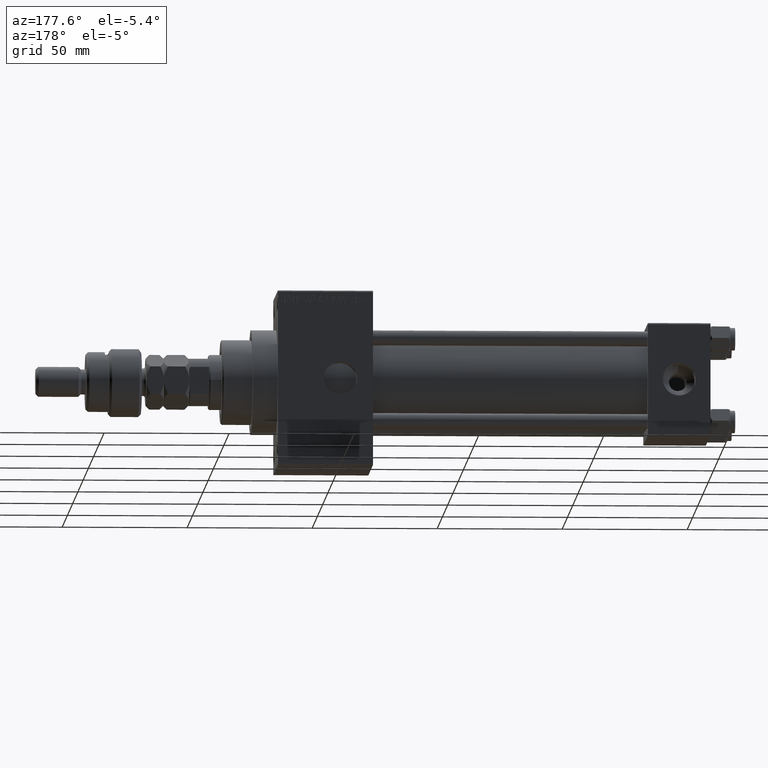
[diagram: clean part render]
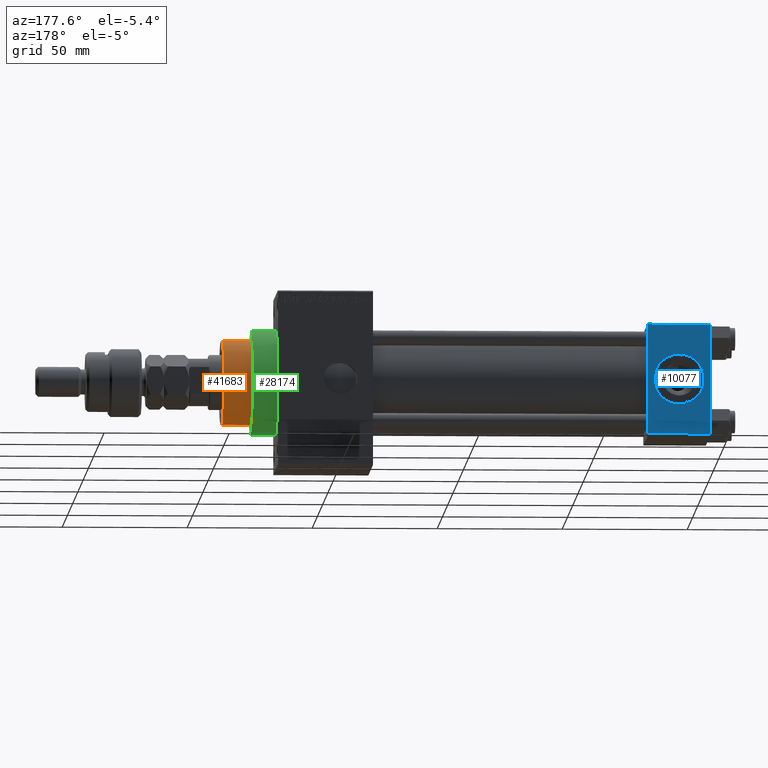
[diagram: same view with three faces highlighted in distinct colors, each labeled with its STEP entity id]
A machine part, auxiliary view with three faces highlighted in distinct colors.
Their STEP definitions:

[orange] entity #41683 — the highlighted cylindrical surface (partial cylindrical patch) has radius 17 mm, axis along (-1, 0, 0).
#1791 = DIRECTION ( 'NONE',  ( 0.000000000000000000, 0.000000000000000000, 1.000000000000000000 ) ) ;
#3384 = CARTESIAN_POINT ( 'NONE',  ( 0.000000000000000000, 0.000000000000000000, 55.26000000000000512 ) ) ;
#3601 = VERTEX_POINT ( 'NONE', #36554 ) ;
#3917 = VECTOR ( 'NONE', #25214, 1000.000000000000000 ) ;
#4761 = CARTESIAN_POINT ( 'NONE',  ( -17.00000000000000000, 0.000000000000000000, 55.26000000000000512 ) ) ;
#7312 = FACE_OUTER_BOUND ( 'NONE', #25603, .T. ) ;
#8261 = DIRECTION ( 'NONE',  ( 1.000000000000000000, 0.000000000000000000, 0.000000000000000000 ) ) ;
#9927 = CARTESIAN_POINT ( 'NONE',  ( 0.000000000000000000, 0.000000000000000000, 43.25999999999999801 ) ) ;
#10093 = ORIENTED_EDGE ( 'NONE', *, *, #15094, .T. ) ;
#11710 = CARTESIAN_POINT ( 'NONE',  ( 17.00000000000000000, 2.081899558550500280E-15, 55.26000000000000512 ) ) ;
#13594 = CARTESIAN_POINT ( 'NONE',  ( 17.00000000000000000, 2.081899558550500280E-15, 54.76000000000001222 ) ) ;
#15094 = EDGE_CURVE ( 'NONE', #35003, #31346, #28921, .T. ) ;
#16918 = ORIENTED_EDGE ( 'NONE', *, *, #44197, .T. ) ;
#21741 = DIRECTION ( 'NONE',  ( 1.000000000000000000, 0.000000000000000000, 0.000000000000000000 ) ) ;
#24557 = AXIS2_PLACEMENT_3D ( 'NONE', #47411, #27981, #8261 ) ;
#25214 = DIRECTION ( 'NONE',  ( -0.000000000000000000, -0.000000000000000000, -1.000000000000000000 ) ) ;
#25603 = EDGE_LOOP ( 'NONE', ( #40125, #16918, #10093, #39346 ) ) ;
#27085 = CIRCLE ( 'NONE', #27919, 17.00000000000000000 ) ;
#27919 = AXIS2_PLACEMENT_3D ( 'NONE', #9927, #1791, #21741 ) ;
#27981 = DIRECTION ( 'NONE',  ( 0.000000000000000000, 0.000000000000000000, -1.000000000000000000 ) ) ;
#28921 = LINE ( 'NONE', #4761, #3917 ) ;
#29173 = CARTESIAN_POINT ( 'NONE',  ( -17.00000000000000000, 0.000000000000000000, 43.25999999999999801 ) ) ;
#31295 = CIRCLE ( 'NONE', #24557, 17.00000000000000000 ) ;
#31346 = VERTEX_POINT ( 'NONE', #29173 ) ;
#34606 = DIRECTION ( 'NONE',  ( -1.000000000000000000, 0.000000000000000000, 0.000000000000000000 ) ) ;
#35003 = VERTEX_POINT ( 'NONE', #43496 ) ;
#36554 = CARTESIAN_POINT ( 'NONE',  ( 17.00000000000000000, 2.081899558550500280E-15, 43.25999999999999801 ) ) ;
#39346 = ORIENTED_EDGE ( 'NONE', *, *, #44133, .T. ) ;
#40125 = ORIENTED_EDGE ( 'NONE', *, *, #42194, .F. ) ;
#41683 = ADVANCED_FACE ( 'NONE', ( #7312 ), #46443, .T. ) ;
#42194 = EDGE_CURVE ( 'NONE', #49418, #3601, #47678, .T. ) ;
#42508 = DIRECTION ( 'NONE',  ( -0.000000000000000000, -0.000000000000000000, -1.000000000000000000 ) ) ;
#43496 = CARTESIAN_POINT ( 'NONE',  ( -17.00000000000000000, 0.000000000000000000, 54.76000000000001222 ) ) ;
#43741 = DIRECTION ( 'NONE',  ( -0.000000000000000000, -0.000000000000000000, -1.000000000000000000 ) ) ;
#44133 = EDGE_CURVE ( 'NONE', #31346, #3601, #27085, .T. ) ;
#44197 = EDGE_CURVE ( 'NONE', #49418, #35003, #31295, .T. ) ;
#46443 = CYLINDRICAL_SURFACE ( 'NONE', #49586, 17.00000000000000000 ) ;
#47411 = CARTESIAN_POINT ( 'NONE',  ( 0.000000000000000000, 0.000000000000000000, 54.76000000000001222 ) ) ;
#47678 = LINE ( 'NONE', #11710, #51309 ) ;
#49418 = VERTEX_POINT ( 'NONE', #13594 ) ;
#49586 = AXIS2_PLACEMENT_3D ( 'NONE', #3384, #42508, #34606 ) ;
#51309 = VECTOR ( 'NONE', #43741, 1000.000000000000000 ) ;

[blue] entity #10077 — the highlighted planar face has unit normal (0, 1, 0).
#98 = CARTESIAN_POINT ( 'NONE',  ( 25.00000000000000000, 22.50000000000000000, -21.99999999999996803 ) ) ;
#984 = ORIENTED_EDGE ( 'NONE', *, *, #51401, .T. ) ;
#1553 = CARTESIAN_POINT ( 'NONE',  ( 25.00000000000000000, 22.50000000000000000, 21.99999999999999645 ) ) ;
#1724 = CIRCLE ( 'NONE', #8450, 9.999999999999996447 ) ;
#1955 = CARTESIAN_POINT ( 'NONE',  ( 12.50000000000000000, 22.50000000000000000, 9.999999999999996447 ) ) ;
#1962 = CARTESIAN_POINT ( 'NONE',  ( 0.000000000000000000, 22.50000000000000000, 22.50000000000000355 ) ) ;
#3351 = CARTESIAN_POINT ( 'NONE',  ( 12.50000000000000000, 22.50000000000000000, 0.000000000000000000 ) ) ;
#3533 = LINE ( 'NONE', #30852, #6254 ) ;
#4919 = VERTEX_POINT ( 'NONE', #1553 ) ;
#6254 = VECTOR ( 'NONE', #22962, 1000.000000000000000 ) ;
#6462 = CARTESIAN_POINT ( 'NONE',  ( 0.000000000000000000, 22.50000000000000000, 21.99999999999999645 ) ) ;
#7882 = AXIS2_PLACEMENT_3D ( 'NONE', #12255, #47981, #48765 ) ;
#8450 = AXIS2_PLACEMENT_3D ( 'NONE', #3351, #40340, #39567 ) ;
#8513 = EDGE_CURVE ( 'NONE', #18109, #12749, #13923, .T. ) ;
#9815 = CARTESIAN_POINT ( 'NONE',  ( 12.50000000000000000, 22.50000000000000000, 0.000000000000000000 ) ) ;
#9998 = DIRECTION ( 'NONE',  ( -1.000000000000000000, 0.000000000000000000, 0.000000000000000000 ) ) ;
#10077 = ADVANCED_FACE ( 'NONE', ( #20140, #32742 ), #48245, .T. ) ;
#11606 = DIRECTION ( 'NONE',  ( 1.000000000000000000, 0.000000000000000000, 0.000000000000000000 ) ) ;
#12255 = CARTESIAN_POINT ( 'NONE',  ( 25.00000000000000000, 22.50000000000000000, 22.50000000000000355 ) ) ;
#12397 = EDGE_LOOP ( 'NONE', ( #984, #28119, #16240, #22438 ) ) ;
#12749 = VERTEX_POINT ( 'NONE', #41467 ) ;
#13923 = LINE ( 'NONE', #45969, #21208 ) ;
#15720 = CIRCLE ( 'NONE', #50084, 9.999999999999996447 ) ;
#16240 = ORIENTED_EDGE ( 'NONE', *, *, #22246, .F. ) ;
#17750 = CARTESIAN_POINT ( 'NONE',  ( 12.50000000000000178, 22.50000000000000000, -9.999999999999996447 ) ) ;
#18109 = VERTEX_POINT ( 'NONE', #98 ) ;
#18201 = DIRECTION ( 'NONE',  ( 0.000000000000000000, 1.000000000000000000, 0.000000000000000000 ) ) ;
#20140 = FACE_BOUND ( 'NONE', #26740, .T. ) ;
#21208 = VECTOR ( 'NONE', #9998, 1000.000000000000000 ) ;
#21808 = VERTEX_POINT ( 'NONE', #17750 ) ;
#22246 = EDGE_CURVE ( 'NONE', #28018, #12749, #25855, .T. ) ;
#22438 = ORIENTED_EDGE ( 'NONE', *, *, #51922, .T. ) ;
#22962 = DIRECTION ( 'NONE',  ( 0.000000000000000000, 0.000000000000000000, -1.000000000000000000 ) ) ;
#25112 = VERTEX_POINT ( 'NONE', #1955 ) ;
#25855 = LINE ( 'NONE', #1962, #36717 ) ;
#26740 = EDGE_LOOP ( 'NONE', ( #32309, #46990 ) ) ;
#28018 = VERTEX_POINT ( 'NONE', #6462 ) ;
#28119 = ORIENTED_EDGE ( 'NONE', *, *, #8513, .T. ) ;
#29207 = EDGE_CURVE ( 'NONE', #25112, #21808, #15720, .T. ) ;
#30852 = CARTESIAN_POINT ( 'NONE',  ( 25.00000000000000000, 22.50000000000000000, 22.50000000000000355 ) ) ;
#32309 = ORIENTED_EDGE ( 'NONE', *, *, #29207, .F. ) ;
#32742 = FACE_OUTER_BOUND ( 'NONE', #12397, .T. ) ;
#36605 = EDGE_CURVE ( 'NONE', #21808, #25112, #1724, .T. ) ;
#36717 = VECTOR ( 'NONE', #46862, 1000.000000000000000 ) ;
#39567 = DIRECTION ( 'NONE',  ( 0.000000000000000000, 0.000000000000000000, 1.000000000000000000 ) ) ;
#39689 = CARTESIAN_POINT ( 'NONE',  ( 25.00000000000000000, 22.50000000000000000, 21.99999999999999645 ) ) ;
#40340 = DIRECTION ( 'NONE',  ( 0.000000000000000000, 1.000000000000000000, 0.000000000000000000 ) ) ;
#41467 = CARTESIAN_POINT ( 'NONE',  ( 0.000000000000000000, 22.50000000000000000, -21.99999999999996803 ) ) ;
#45028 = DIRECTION ( 'NONE',  ( 0.000000000000000000, 0.000000000000000000, 1.000000000000000000 ) ) ;
#45969 = CARTESIAN_POINT ( 'NONE',  ( 25.00000000000000000, 22.50000000000000000, -21.99999999999998224 ) ) ;
#46862 = DIRECTION ( 'NONE',  ( 0.000000000000000000, 0.000000000000000000, -1.000000000000000000 ) ) ;
#46990 = ORIENTED_EDGE ( 'NONE', *, *, #36605, .F. ) ;
#47981 = DIRECTION ( 'NONE',  ( -0.000000000000000000, 1.000000000000000000, 0.000000000000000000 ) ) ;
#48245 = PLANE ( 'NONE',  #7882 ) ;
#48765 = DIRECTION ( 'NONE',  ( 0.000000000000000000, -0.000000000000000000, 1.000000000000000000 ) ) ;
#50084 = AXIS2_PLACEMENT_3D ( 'NONE', #9815, #18201, #45028 ) ;
#51004 = LINE ( 'NONE', #39689, #51567 ) ;
#51401 = EDGE_CURVE ( 'NONE', #4919, #18109, #3533, .T. ) ;
#51567 = VECTOR ( 'NONE', #11606, 1000.000000000000000 ) ;
#51922 = EDGE_CURVE ( 'NONE', #28018, #4919, #51004, .T. ) ;

[green] entity #28174 — the highlighted cylindrical surface (partial cylindrical patch) has radius 21 mm, axis along (-1, -0, -0).
#2780 = VECTOR ( 'NONE', #29974, 1000.000000000000000 ) ;
#6594 = LINE ( 'NONE', #9742, #2780 ) ;
#6856 = DIRECTION ( 'NONE',  ( 1.000000000000000000, 0.000000000000000000, 0.000000000000000000 ) ) ;
#9705 = CARTESIAN_POINT ( 'NONE',  ( 183.0000000000000284, 2.571758278209441661E-15, -21.00000000000000000 ) ) ;
#9742 = CARTESIAN_POINT ( 'NONE',  ( 183.0000000000000284, 0.000000000000000000, 21.00000000000000000 ) ) ;
#11580 = DIRECTION ( 'NONE',  ( 0.000000000000000000, 0.000000000000000000, -1.000000000000000000 ) ) ;
#16147 = DIRECTION ( 'NONE',  ( 0.000000000000000000, 0.000000000000000000, 1.000000000000000000 ) ) ;
#18799 = AXIS2_PLACEMENT_3D ( 'NONE', #48519, #6856, #11580 ) ;
#21141 = AXIS2_PLACEMENT_3D ( 'NONE', #44510, #24301, #16147 ) ;
#21551 = VERTEX_POINT ( 'NONE', #30192 ) ;
#22544 = VERTEX_POINT ( 'NONE', #27045 ) ;
#24188 = ORIENTED_EDGE ( 'NONE', *, *, #51852, .F. ) ;
#24301 = DIRECTION ( 'NONE',  ( -1.000000000000000000, -0.000000000000000000, -0.000000000000000000 ) ) ;
#26317 = DIRECTION ( 'NONE',  ( 0.000000000000000000, 0.000000000000000000, -1.000000000000000000 ) ) ;
#27045 = CARTESIAN_POINT ( 'NONE',  ( 173.0000000000000284, 2.571758278209441661E-15, -21.00000000000000000 ) ) ;
#28174 = ADVANCED_FACE ( 'NONE', ( #35856 ), #40049, .T. ) ;
#29953 = CARTESIAN_POINT ( 'NONE',  ( 173.0000000000000284, 0.000000000000000000, 21.00000000000000000 ) ) ;
#29974 = DIRECTION ( 'NONE',  ( -1.000000000000000000, -0.000000000000000000, -0.000000000000000000 ) ) ;
#30192 = CARTESIAN_POINT ( 'NONE',  ( 183.0000000000000284, 0.000000000000000000, 21.00000000000000000 ) ) ;
#30428 = VERTEX_POINT ( 'NONE', #9705 ) ;
#31057 = EDGE_CURVE ( 'NONE', #30428, #22544, #50290, .T. ) ;
#33898 = CIRCLE ( 'NONE', #18799, 21.00000000000000000 ) ;
#33990 = DIRECTION ( 'NONE',  ( -1.000000000000000000, -0.000000000000000000, -0.000000000000000000 ) ) ;
#35612 = AXIS2_PLACEMENT_3D ( 'NONE', #37344, #46004, #26317 ) ;
#35856 = FACE_OUTER_BOUND ( 'NONE', #47250, .T. ) ;
#37276 = CIRCLE ( 'NONE', #35612, 21.00000000000000000 ) ;
#37344 = CARTESIAN_POINT ( 'NONE',  ( 183.0000000000000284, 0.000000000000000000, 0.000000000000000000 ) ) ;
#37438 = VERTEX_POINT ( 'NONE', #29953 ) ;
#40049 = CYLINDRICAL_SURFACE ( 'NONE', #21141, 21.00000000000000000 ) ;
#41084 = ORIENTED_EDGE ( 'NONE', *, *, #50535, .T. ) ;
#41761 = VECTOR ( 'NONE', #33990, 1000.000000000000000 ) ;
#44268 = ORIENTED_EDGE ( 'NONE', *, *, #45450, .F. ) ;
#44510 = CARTESIAN_POINT ( 'NONE',  ( 183.0000000000000284, 0.000000000000000000, 0.000000000000000000 ) ) ;
#45450 = EDGE_CURVE ( 'NONE', #21551, #37438, #6594, .T. ) ;
#46004 = DIRECTION ( 'NONE',  ( 1.000000000000000000, 0.000000000000000000, 0.000000000000000000 ) ) ;
#47250 = EDGE_LOOP ( 'NONE', ( #24188, #51258, #41084, #44268 ) ) ;
#48519 = CARTESIAN_POINT ( 'NONE',  ( 173.0000000000000284, 0.000000000000000000, 0.000000000000000000 ) ) ;
#50020 = CARTESIAN_POINT ( 'NONE',  ( 183.0000000000000284, 2.571758278209441661E-15, -21.00000000000000000 ) ) ;
#50290 = LINE ( 'NONE', #50020, #41761 ) ;
#50535 = EDGE_CURVE ( 'NONE', #22544, #37438, #33898, .T. ) ;
#51258 = ORIENTED_EDGE ( 'NONE', *, *, #31057, .T. ) ;
#51852 = EDGE_CURVE ( 'NONE', #30428, #21551, #37276, .T. ) ;